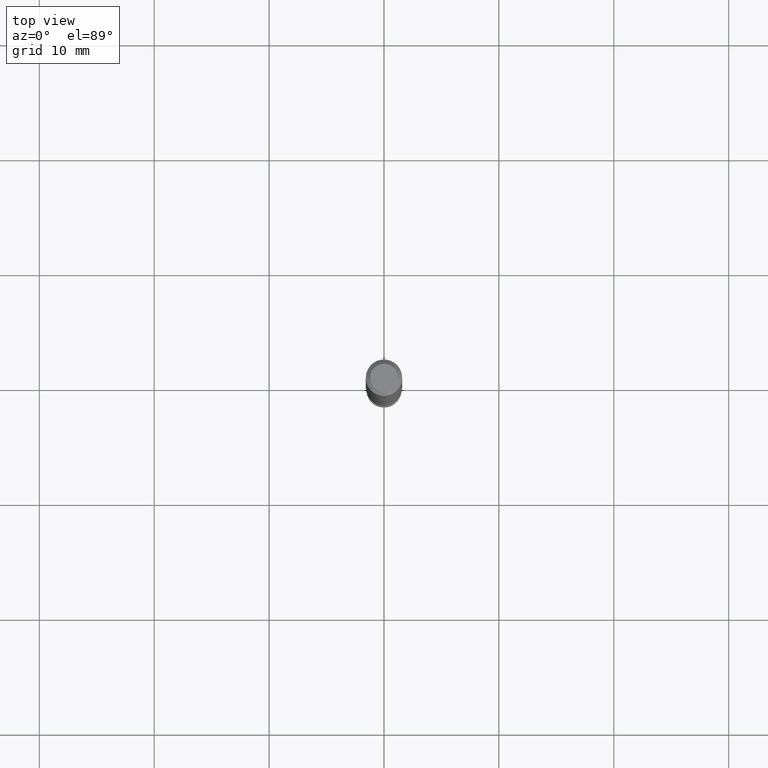
[diagram: clean part render]
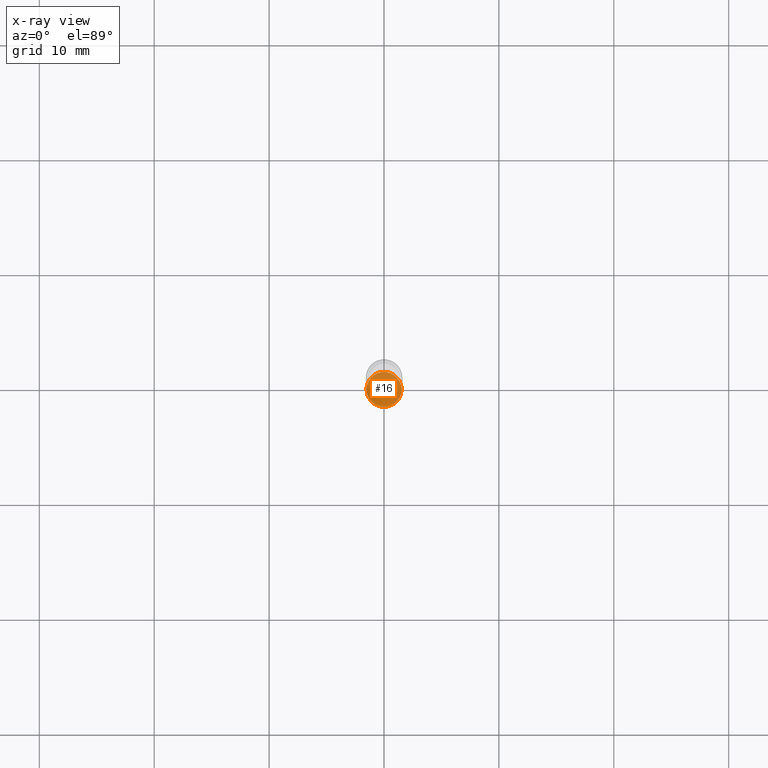
[diagram: x-ray — body ghosted, one internal face saturated and labeled with its STEP entity id]
A machine part, top view, then the same camera in x-ray: the body is ghosted and one INTERNAL B-rep face — a face not visible from any outside direction — is saturated and labeled: STEP entity #16.
In plain terms, the highlighted planar face has unit normal (-0, 0, 1).
Its self-contained STEP definition (entity closure, byte-faithful):
#6 = DIRECTION ( 'NONE',  ( -2.445468806185136597E-29, 3.491481338843145583E-15, 1.000000000000000000 ) ) ;
#16 = ADVANCED_FACE ( 'NONE', ( #194 ), #554, .F. ) ;
#59 = CARTESIAN_POINT ( 'NONE',  ( 5.673487630349517039E-29, -8.100236706116099992E-15, -2.320000000000000284 ) ) ;
#76 = VERTEX_POINT ( 'NONE', #168 ) ;
#103 = EDGE_LOOP ( 'NONE', ( #106, #159 ) ) ;
#106 = ORIENTED_EDGE ( 'NONE', *, *, #413, .F. ) ;
#125 = CARTESIAN_POINT ( 'NONE',  ( 5.673487630349517039E-29, -8.100236706116099992E-15, -2.320000000000000284 ) ) ;
#136 = CARTESIAN_POINT ( 'NONE',  ( -0.05999999999999999778, -7.673911064660039502E-15, -2.320000000000000284 ) ) ;
#155 = CARTESIAN_POINT ( 'NONE',  ( 4.189777606612326922E-16, 0.05999999999999190009, -2.320000000000000728 ) ) ;
#159 = ORIENTED_EDGE ( 'NONE', *, *, #424, .F. ) ;
#168 = CARTESIAN_POINT ( 'NONE',  ( 0.05999999999999999778, -8.519214466777275048E-15, -2.320000000000000284 ) ) ;
#194 = FACE_OUTER_BOUND ( 'NONE', #103, .T. ) ;
#215 = DIRECTION ( 'NONE',  ( 1.000000000000000000, -6.982962677686265922E-15, 4.876176775795935793E-29 ) ) ;
#247 = AXIS2_PLACEMENT_3D ( 'NONE', #125, #395, #473 ) ;
#257 = CIRCLE ( 'NONE', #289, 0.05999999999999999778 ) ;
#289 = AXIS2_PLACEMENT_3D ( 'NONE', #59, #6, #482 ) ;
#328 = DIRECTION ( 'NONE',  ( -2.438088387897960049E-29, 3.491481338843145188E-15, 1.000000000000000000 ) ) ;
#395 = DIRECTION ( 'NONE',  ( -2.445468806185136597E-29, 3.491481338843145583E-15, 1.000000000000000000 ) ) ;
#413 = EDGE_CURVE ( 'NONE', #76, #464, #528, .T. ) ;
#424 = EDGE_CURVE ( 'NONE', #464, #76, #257, .T. ) ;
#464 = VERTEX_POINT ( 'NONE', #136 ) ;
#465 = AXIS2_PLACEMENT_3D ( 'NONE', #155, #328, #215 ) ;
#473 = DIRECTION ( 'NONE',  ( 1.000000000000000000, -6.982962677686268288E-15, 0.000000000000000000 ) ) ;
#482 = DIRECTION ( 'NONE',  ( 1.000000000000000000, -6.982962677686268288E-15, 0.000000000000000000 ) ) ;
#528 = CIRCLE ( 'NONE', #247, 0.05999999999999999778 ) ;
#554 = PLANE ( 'NONE',  #465 ) ;